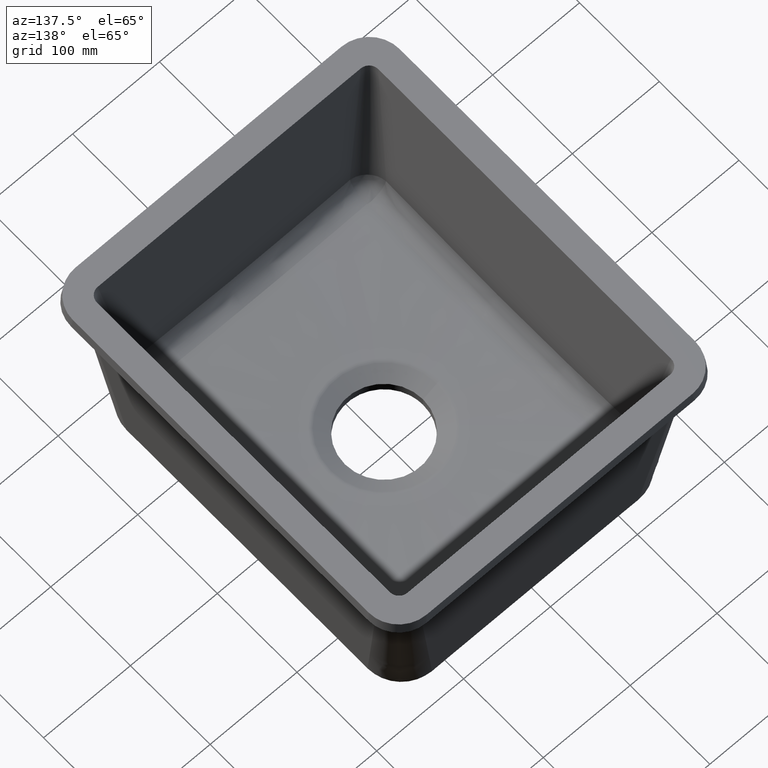
[diagram: clean part render]
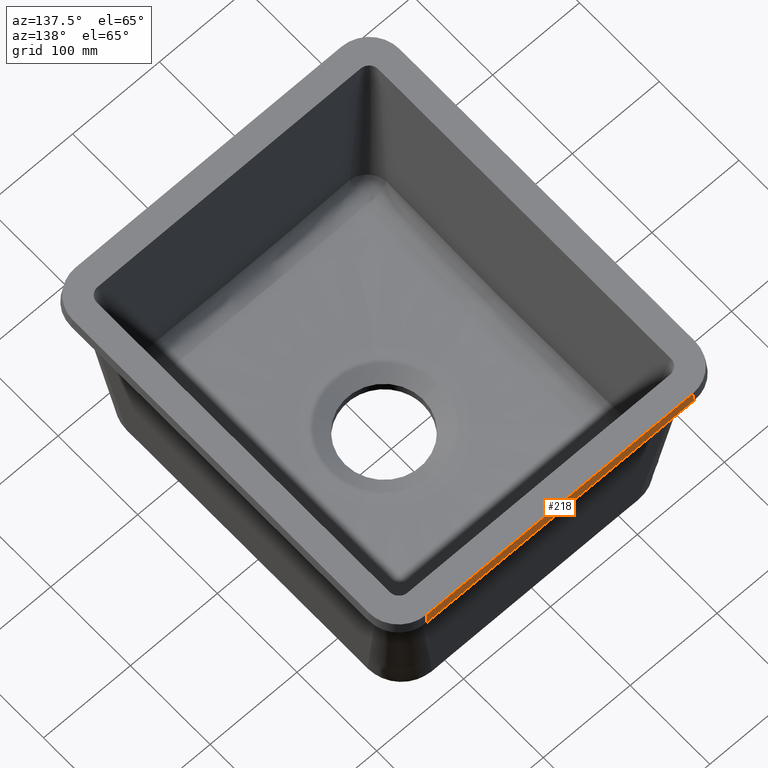
[diagram: same view with one face highlighted and labeled with its STEP entity id]
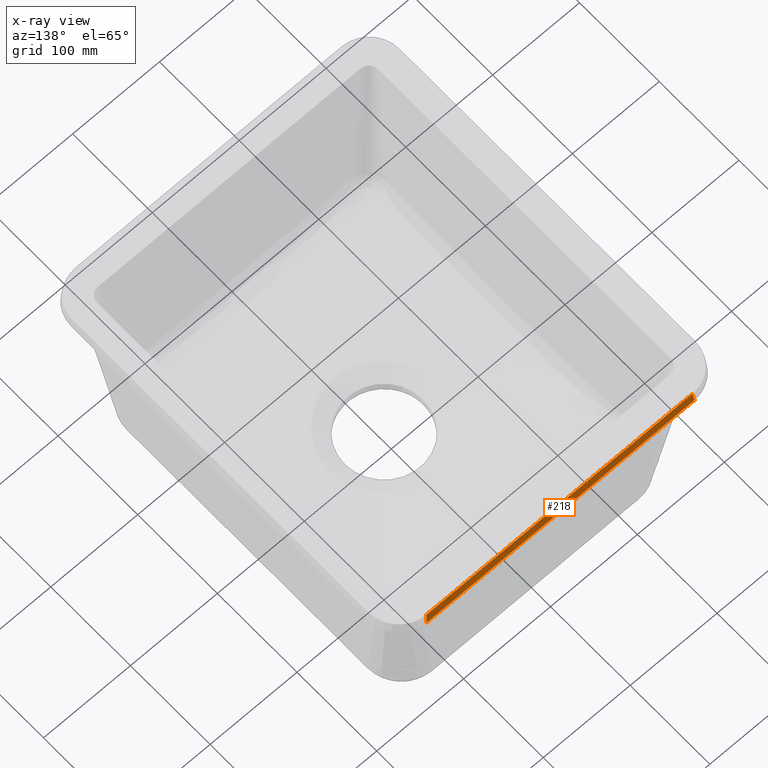
[diagram: x-ray of the same camera — body ghosted, the highlighted face saturated]
A machine part, auxiliary view. The second image highlights one B-rep face of the part: STEP entity #218.
The next image is the same camera in x-ray: the body ghosted, the highlighted face saturated — about 0% of this face is hidden behind the body in this view.
In plain terms, the highlighted planar face has unit normal (0, -0.9962, -0.0872).
Its self-contained STEP definition (entity closure, byte-faithful):
#57=PLANE('',#1386);
#69=LINE('',#3068,#93);
#74=LINE('',#3627,#98);
#75=LINE('',#3629,#99);
#76=LINE('',#3631,#100);
#93=VECTOR('',#1480,1.);
#98=VECTOR('',#1513,1.);
#99=VECTOR('',#1514,1.);
#100=VECTOR('',#1515,1.);
#218=ADVANCED_FACE('',(#343),#57,.F.);
#343=FACE_OUTER_BOUND('',#433,.T.);
#433=EDGE_LOOP('',(#722,#723,#724,#725));
#722=ORIENTED_EDGE('',*,*,#1125,.T.);
#723=ORIENTED_EDGE('',*,*,#1165,.F.);
#724=ORIENTED_EDGE('',*,*,#1166,.F.);
#725=ORIENTED_EDGE('',*,*,#1167,.F.);
#976=VERTEX_POINT('',#3069);
#977=VERTEX_POINT('',#3070);
#1002=VERTEX_POINT('',#3628);
#1003=VERTEX_POINT('',#3630);
#1125=EDGE_CURVE('',#976,#977,#69,.T.);
#1165=EDGE_CURVE('',#1002,#977,#74,.T.);
#1166=EDGE_CURVE('',#1003,#1002,#75,.T.);
#1167=EDGE_CURVE('',#976,#1003,#76,.T.);
#1386=AXIS2_PLACEMENT_3D('',#3632,#1516,#1517);
#1480=DIRECTION('',(1.,0.,0.));
#1513=DIRECTION('',(-0.0868265938642475,-0.0868265938642475,0.992432509138967));
#1514=DIRECTION('',(1.,0.,0.));
#1515=DIRECTION('',(-0.0868265938642475,0.0868265938642475,-0.992432509138967));
#1516=DIRECTION('',(0.,-0.996194698091746,-0.0871557427476581));
#1517=DIRECTION('',(0.,-0.0871557427476581,0.996194698091746));
#3068=CARTESIAN_POINT('',(187.5,11.3499546541037,0.));
#3069=CARTESIAN_POINT('',(-152.983140220893,11.3499546541037,0.));
#3070=CARTESIAN_POINT('',(152.983140220893,11.3499546541037,-2.16840434497101E-16));
#3627=CARTESIAN_POINT('',(152.896041508865,11.2628559420763,0.995542833976172));
#3628=CARTESIAN_POINT('',(154.120492846729,12.4873072799407,-13.));
#3629=CARTESIAN_POINT('',(187.5,12.4873072799407,-13.));
#3630=CARTESIAN_POINT('',(-154.120492846729,12.4873072799407,-13.));
#3631=CARTESIAN_POINT('',(-150.06896998309,8.43578441630119,33.3091182372331));
#3632=CARTESIAN_POINT('',(187.5,11.,4.));